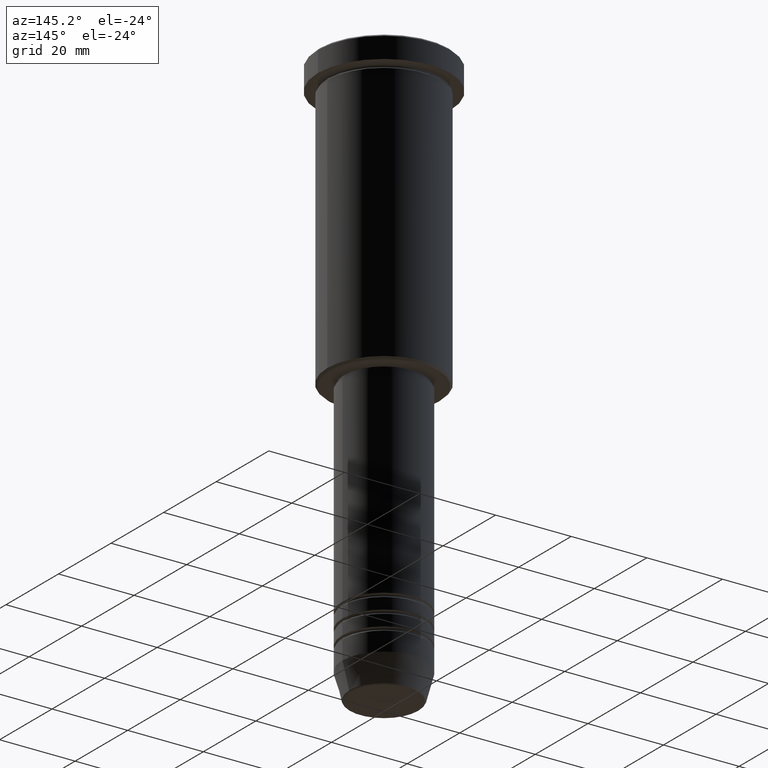
[diagram: clean part render]
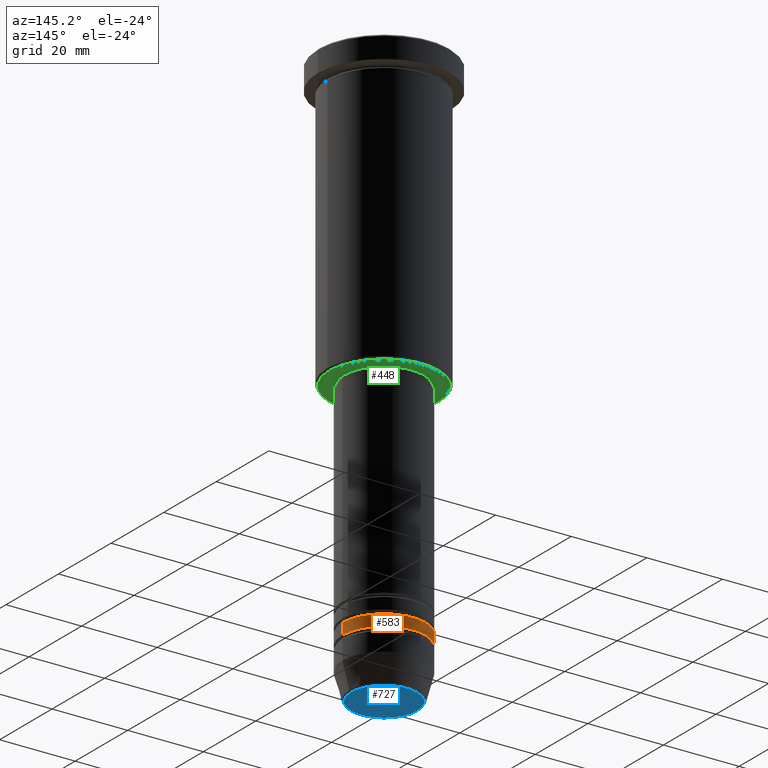
[diagram: same view with three faces highlighted in distinct colors, each labeled with its STEP entity id]
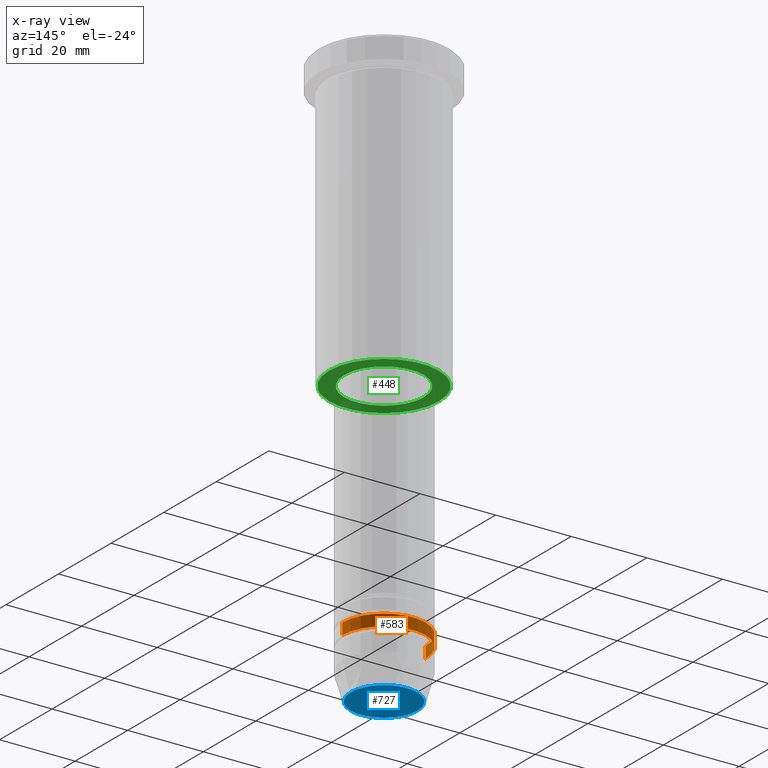
[diagram: x-ray of the same camera — body ghosted, the three highlighted faces saturated]
A machine part, auxiliary view with three faces highlighted in distinct colors.
The next image is the same camera in x-ray (body ghosted, the three faces saturated) — at least one of them is partly hidden behind the body in this view.
Their STEP definitions:

[orange] entity #583 — the highlighted cylindrical surface (partial cylindrical patch) has radius 11 mm, axis along (-0, -0, 1).
#1 = CARTESIAN_POINT ( 'NONE',  ( 11.00000000000000000, 0.000000000000000000, -137.9999999999998863 ) ) ;
#24 = VERTEX_POINT ( 'NONE', #1105 ) ;
#51 = CYLINDRICAL_SURFACE ( 'NONE', #476, 11.00000000000000000 ) ;
#52 = DIRECTION ( 'NONE',  ( -0.000000000000000000, -0.000000000000000000, 1.000000000000000000 ) ) ;
#121 = ORIENTED_EDGE ( 'NONE', *, *, #933, .T. ) ;
#186 = DIRECTION ( 'NONE',  ( -0.000000000000000000, -0.000000000000000000, 1.000000000000000000 ) ) ;
#203 = CARTESIAN_POINT ( 'NONE',  ( -11.00000000000000000, 1.347111479062088405E-15, 0.000000000000000000 ) ) ;
#238 = EDGE_CURVE ( 'NONE', #636, #24, #371, .T. ) ;
#240 = CARTESIAN_POINT ( 'NONE',  ( 0.000000000000000000, 0.000000000000000000, 0.000000000000000000 ) ) ;
#294 = CARTESIAN_POINT ( 'NONE',  ( -11.00000000000000000, 1.347111479062088405E-15, -134.9999999999998863 ) ) ;
#367 = CARTESIAN_POINT ( 'NONE',  ( 0.000000000000000000, 0.000000000000000000, -137.9999999999998863 ) ) ;
#371 = LINE ( 'NONE', #720, #456 ) ;
#421 = DIRECTION ( 'NONE',  ( -0.000000000000000000, -0.000000000000000000, 1.000000000000000000 ) ) ;
#447 = VECTOR ( 'NONE', #1021, 1000.000000000000000 ) ;
#456 = VECTOR ( 'NONE', #1092, 1000.000000000000000 ) ;
#457 = AXIS2_PLACEMENT_3D ( 'NONE', #367, #186, #461 ) ;
#461 = DIRECTION ( 'NONE',  ( 1.000000000000000000, 0.000000000000000000, 0.000000000000000000 ) ) ;
#471 = EDGE_LOOP ( 'NONE', ( #121, #1018, #749, #654 ) ) ;
#476 = AXIS2_PLACEMENT_3D ( 'NONE', #240, #421, #1137 ) ;
#544 = CIRCLE ( 'NONE', #731, 11.00000000000000000 ) ;
#583 = ADVANCED_FACE ( 'NONE', ( #772 ), #51, .T. ) ;
#636 = VERTEX_POINT ( 'NONE', #1 ) ;
#654 = ORIENTED_EDGE ( 'NONE', *, *, #238, .F. ) ;
#720 = CARTESIAN_POINT ( 'NONE',  ( 11.00000000000000000, 0.000000000000000000, 0.000000000000000000 ) ) ;
#731 = AXIS2_PLACEMENT_3D ( 'NONE', #944, #52, #803 ) ;
#749 = ORIENTED_EDGE ( 'NONE', *, *, #876, .F. ) ;
#772 = FACE_OUTER_BOUND ( 'NONE', #471, .T. ) ;
#803 = DIRECTION ( 'NONE',  ( 1.000000000000000000, 0.000000000000000000, 0.000000000000000000 ) ) ;
#830 = VERTEX_POINT ( 'NONE', #930 ) ;
#876 = EDGE_CURVE ( 'NONE', #24, #1000, #544, .T. ) ;
#930 = CARTESIAN_POINT ( 'NONE',  ( -11.00000000000000000, 1.347111479062088405E-15, -137.9999999999998863 ) ) ;
#933 = EDGE_CURVE ( 'NONE', #636, #830, #951, .T. ) ;
#944 = CARTESIAN_POINT ( 'NONE',  ( 0.000000000000000000, 0.000000000000000000, -134.9999999999998863 ) ) ;
#951 = CIRCLE ( 'NONE', #457, 11.00000000000000000 ) ;
#1000 = VERTEX_POINT ( 'NONE', #294 ) ;
#1005 = EDGE_CURVE ( 'NONE', #830, #1000, #1017, .T. ) ;
#1017 = LINE ( 'NONE', #203, #447 ) ;
#1018 = ORIENTED_EDGE ( 'NONE', *, *, #1005, .T. ) ;
#1021 = DIRECTION ( 'NONE',  ( -0.000000000000000000, -0.000000000000000000, 1.000000000000000000 ) ) ;
#1092 = DIRECTION ( 'NONE',  ( -0.000000000000000000, -0.000000000000000000, 1.000000000000000000 ) ) ;
#1105 = CARTESIAN_POINT ( 'NONE',  ( 11.00000000000000000, 0.000000000000000000, -134.9999999999998863 ) ) ;
#1137 = DIRECTION ( 'NONE',  ( 1.000000000000000000, 0.000000000000000000, 0.000000000000000000 ) ) ;

[blue] entity #727 — the highlighted planar face has unit normal (0, -0, 1).
#43 = EDGE_LOOP ( 'NONE', ( #645, #1086 ) ) ;
#193 = AXIS2_PLACEMENT_3D ( 'NONE', #415, #315, #220 ) ;
#220 = DIRECTION ( 'NONE',  ( 1.000000000000000000, 0.000000000000000000, 0.000000000000000000 ) ) ;
#221 = EDGE_CURVE ( 'NONE', #905, #822, #358, .T. ) ;
#231 = PLANE ( 'NONE',  #193 ) ;
#264 = DIRECTION ( 'NONE',  ( 0.000000000000000000, 0.000000000000000000, -1.000000000000000000 ) ) ;
#315 = DIRECTION ( 'NONE',  ( 0.000000000000000000, -0.000000000000000000, 1.000000000000000000 ) ) ;
#358 = CIRCLE ( 'NONE', #629, 8.740692158992656502 ) ;
#415 = CARTESIAN_POINT ( 'NONE',  ( 0.000000000000000000, 0.000000000000000000, -151.0000000000000284 ) ) ;
#459 = DIRECTION ( 'NONE',  ( 1.000000000000000000, 0.000000000000000000, 0.000000000000000000 ) ) ;
#531 = CARTESIAN_POINT ( 'NONE',  ( 0.000000000000000000, 0.000000000000000000, -151.0000000000000284 ) ) ;
#557 = CARTESIAN_POINT ( 'NONE',  ( 0.000000000000000000, 0.000000000000000000, -151.0000000000000284 ) ) ;
#577 = FACE_OUTER_BOUND ( 'NONE', #43, .T. ) ;
#629 = AXIS2_PLACEMENT_3D ( 'NONE', #531, #264, #459 ) ;
#638 = DIRECTION ( 'NONE',  ( 1.000000000000000000, 0.000000000000000000, 0.000000000000000000 ) ) ;
#645 = ORIENTED_EDGE ( 'NONE', *, *, #1030, .T. ) ;
#712 = CARTESIAN_POINT ( 'NONE',  ( -8.740692158992656502, 1.099999016768739653E-15, -151.0000000000000284 ) ) ;
#727 = ADVANCED_FACE ( 'NONE', ( #577 ), #231, .F. ) ;
#730 = DIRECTION ( 'NONE',  ( 0.000000000000000000, 0.000000000000000000, -1.000000000000000000 ) ) ;
#801 = CIRCLE ( 'NONE', #1100, 8.740692158992656502 ) ;
#822 = VERTEX_POINT ( 'NONE', #1111 ) ;
#905 = VERTEX_POINT ( 'NONE', #712 ) ;
#1030 = EDGE_CURVE ( 'NONE', #822, #905, #801, .T. ) ;
#1086 = ORIENTED_EDGE ( 'NONE', *, *, #221, .T. ) ;
#1100 = AXIS2_PLACEMENT_3D ( 'NONE', #557, #730, #638 ) ;
#1111 = CARTESIAN_POINT ( 'NONE',  ( 8.740692158992656502, 0.000000000000000000, -151.0000000000000284 ) ) ;

[green] entity #448 — the highlighted planar face has unit normal (0, 0, -1).
#3 = CARTESIAN_POINT ( 'NONE',  ( 14.49999999999998401, 0.000000000000000000, -76.00000000000001421 ) ) ;
#75 = CARTESIAN_POINT ( 'NONE',  ( -10.49999999999999822, 1.285879139104720633E-15, -76.00000000000001421 ) ) ;
#79 = CARTESIAN_POINT ( 'NONE',  ( 0.000000000000000000, 0.000000000000000000, -76.00000000000001421 ) ) ;
#98 = EDGE_CURVE ( 'NONE', #932, #1076, #614, .T. ) ;
#138 = EDGE_CURVE ( 'NONE', #1076, #932, #754, .T. ) ;
#178 = ORIENTED_EDGE ( 'NONE', *, *, #831, .T. ) ;
#189 = EDGE_LOOP ( 'NONE', ( #688, #1055 ) ) ;
#215 = DIRECTION ( 'NONE',  ( 0.000000000000000000, 0.000000000000000000, -1.000000000000000000 ) ) ;
#217 = FACE_BOUND ( 'NONE', #189, .T. ) ;
#225 = VERTEX_POINT ( 'NONE', #3 ) ;
#228 = CARTESIAN_POINT ( 'NONE',  ( 0.000000000000000000, 15.00000000000000000, -76.00000000000001421 ) ) ;
#272 = EDGE_CURVE ( 'NONE', #1007, #225, #775, .T. ) ;
#275 = DIRECTION ( 'NONE',  ( -0.000000000000000000, -0.000000000000000000, 1.000000000000000000 ) ) ;
#304 = CARTESIAN_POINT ( 'NONE',  ( -14.49999999999998401, 1.806354028742345013E-15, -76.00000000000001421 ) ) ;
#308 = AXIS2_PLACEMENT_3D ( 'NONE', #79, #275, #625 ) ;
#350 = CARTESIAN_POINT ( 'NONE',  ( 0.000000000000000000, 0.000000000000000000, -76.00000000000001421 ) ) ;
#362 = AXIS2_PLACEMENT_3D ( 'NONE', #350, #671, #1163 ) ;
#417 = CARTESIAN_POINT ( 'NONE',  ( 0.000000000000000000, 0.000000000000000000, -76.00000000000001421 ) ) ;
#430 = DIRECTION ( 'NONE',  ( -0.000000000000000000, -0.000000000000000000, 1.000000000000000000 ) ) ;
#448 = ADVANCED_FACE ( 'NONE', ( #483, #217 ), #1038, .T. ) ;
#452 = CARTESIAN_POINT ( 'NONE',  ( 0.000000000000000000, 0.000000000000000000, -76.00000000000001421 ) ) ;
#483 = FACE_OUTER_BOUND ( 'NONE', #704, .T. ) ;
#569 = DIRECTION ( 'NONE',  ( -1.000000000000000000, 0.000000000000000000, -0.000000000000000000 ) ) ;
#599 = AXIS2_PLACEMENT_3D ( 'NONE', #417, #430, #1145 ) ;
#614 = CIRCLE ( 'NONE', #599, 10.49999999999999822 ) ;
#625 = DIRECTION ( 'NONE',  ( 1.000000000000000000, 0.000000000000000000, 0.000000000000000000 ) ) ;
#651 = DIRECTION ( 'NONE',  ( -1.000000000000000000, 0.000000000000000000, 0.000000000000000000 ) ) ;
#653 = CARTESIAN_POINT ( 'NONE',  ( 10.49999999999999822, 0.000000000000000000, -76.00000000000001421 ) ) ;
#662 = DIRECTION ( 'NONE',  ( 0.000000000000000000, 0.000000000000000000, -1.000000000000000000 ) ) ;
#671 = DIRECTION ( 'NONE',  ( 0.000000000000000000, 0.000000000000000000, -1.000000000000000000 ) ) ;
#688 = ORIENTED_EDGE ( 'NONE', *, *, #138, .T. ) ;
#704 = EDGE_LOOP ( 'NONE', ( #178, #1051 ) ) ;
#754 = CIRCLE ( 'NONE', #308, 10.49999999999999822 ) ;
#775 = CIRCLE ( 'NONE', #945, 14.49999999999998401 ) ;
#831 = EDGE_CURVE ( 'NONE', #225, #1007, #885, .T. ) ;
#885 = CIRCLE ( 'NONE', #362, 14.49999999999998401 ) ;
#932 = VERTEX_POINT ( 'NONE', #75 ) ;
#945 = AXIS2_PLACEMENT_3D ( 'NONE', #452, #215, #651 ) ;
#1007 = VERTEX_POINT ( 'NONE', #304 ) ;
#1038 = PLANE ( 'NONE',  #1078 ) ;
#1051 = ORIENTED_EDGE ( 'NONE', *, *, #272, .T. ) ;
#1055 = ORIENTED_EDGE ( 'NONE', *, *, #98, .T. ) ;
#1076 = VERTEX_POINT ( 'NONE', #653 ) ;
#1078 = AXIS2_PLACEMENT_3D ( 'NONE', #228, #662, #569 ) ;
#1145 = DIRECTION ( 'NONE',  ( 1.000000000000000000, 0.000000000000000000, 0.000000000000000000 ) ) ;
#1163 = DIRECTION ( 'NONE',  ( -1.000000000000000000, 0.000000000000000000, 0.000000000000000000 ) ) ;